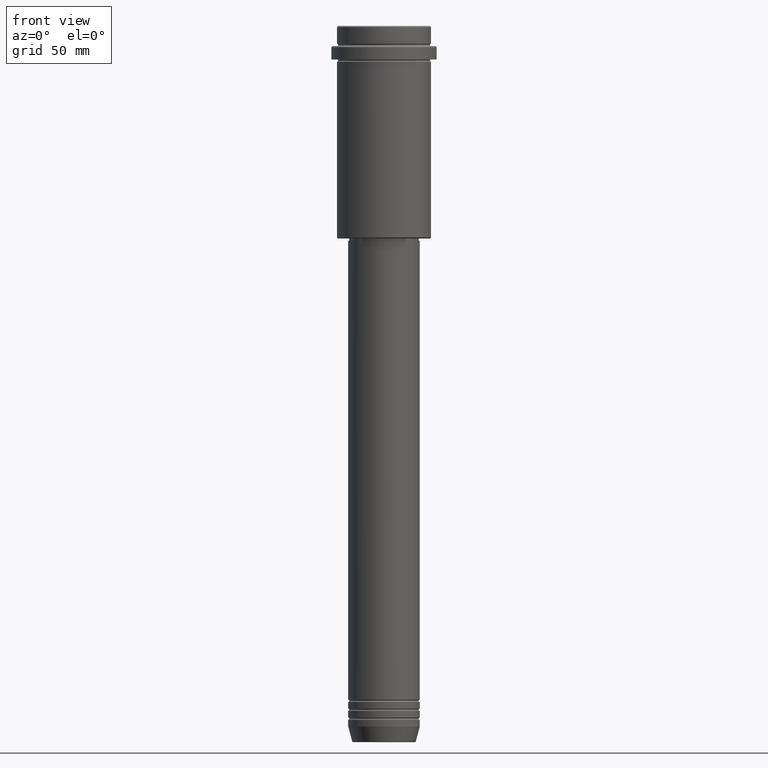
[diagram: clean part render]
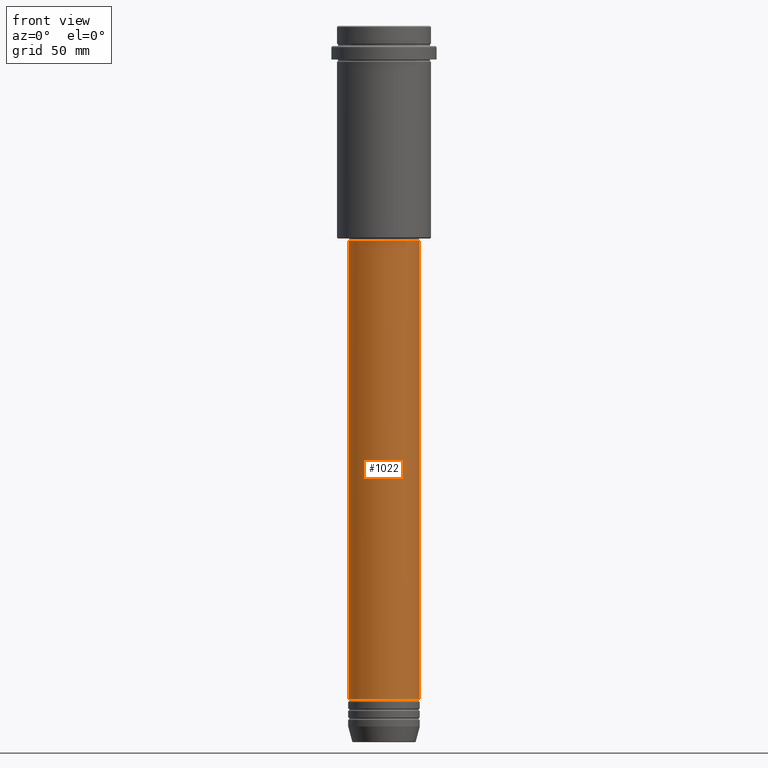
[diagram: same view with one face highlighted and labeled with its STEP entity id]
A machine part, front view. The second image highlights one B-rep face of the part: STEP entity #1022.
In plain terms, the highlighted cylindrical surface (edge-blend (fillet) strip) has radius 16 mm, axis along (-0, -0, 1).
Its self-contained STEP definition (entity closure, byte-faithful):
#16 = FACE_OUTER_BOUND ( 'NONE', #561, .T. ) ;
#30 = CARTESIAN_POINT ( 'NONE',  ( -16.00000000000000000, 1.959434878635765131E-15, -300.9999999999998863 ) ) ;
#51 = CARTESIAN_POINT ( 'NONE',  ( 16.00000000000000000, 0.000000000000000000, -300.9999999999998863 ) ) ;
#107 = VERTEX_POINT ( 'NONE', #30 ) ;
#112 = DIRECTION ( 'NONE',  ( 1.000000000000000000, 0.000000000000000000, 0.000000000000000000 ) ) ;
#143 = CARTESIAN_POINT ( 'NONE',  ( 16.00000000000000000, 0.000000000000000000, 0.000000000000000000 ) ) ;
#152 = DIRECTION ( 'NONE',  ( 1.000000000000000000, 0.000000000000000000, 0.000000000000000000 ) ) ;
#156 = AXIS2_PLACEMENT_3D ( 'NONE', #1094, #799, #112 ) ;
#216 = CIRCLE ( 'NONE', #156, 16.00000000000000355 ) ;
#261 = ORIENTED_EDGE ( 'NONE', *, *, #295, .F. ) ;
#291 = CARTESIAN_POINT ( 'NONE',  ( 16.00000000000000355, 0.000000000000000000, -95.99999999999991473 ) ) ;
#295 = EDGE_CURVE ( 'NONE', #107, #713, #920, .T. ) ;
#307 = AXIS2_PLACEMENT_3D ( 'NONE', #1140, #1129, #152 ) ;
#374 = VECTOR ( 'NONE', #1018, 1000.000000000000000 ) ;
#381 = CARTESIAN_POINT ( 'NONE',  ( -16.00000000000000355, 1.959434878635765526E-15, -95.99999999999991473 ) ) ;
#458 = ORIENTED_EDGE ( 'NONE', *, *, #1178, .T. ) ;
#474 = VECTOR ( 'NONE', #1023, 1000.000000000000000 ) ;
#511 = EDGE_CURVE ( 'NONE', #713, #790, #216, .T. ) ;
#551 = ORIENTED_EDGE ( 'NONE', *, *, #511, .F. ) ;
#561 = EDGE_LOOP ( 'NONE', ( #261, #458, #952, #551 ) ) ;
#713 = VERTEX_POINT ( 'NONE', #381 ) ;
#790 = VERTEX_POINT ( 'NONE', #291 ) ;
#799 = DIRECTION ( 'NONE',  ( -0.000000000000000000, -0.000000000000000000, 1.000000000000000000 ) ) ;
#861 = CYLINDRICAL_SURFACE ( 'NONE', #1284, 16.00000000000000000 ) ;
#871 = DIRECTION ( 'NONE',  ( 1.000000000000000000, 0.000000000000000000, 0.000000000000000000 ) ) ;
#920 = LINE ( 'NONE', #1351, #374 ) ;
#952 = ORIENTED_EDGE ( 'NONE', *, *, #1087, .T. ) ;
#1018 = DIRECTION ( 'NONE',  ( -0.000000000000000000, -0.000000000000000000, 1.000000000000000000 ) ) ;
#1022 = ADVANCED_FACE ( 'NONE', ( #16 ), #861, .T. ) ;
#1023 = DIRECTION ( 'NONE',  ( -0.000000000000000000, -0.000000000000000000, 1.000000000000000000 ) ) ;
#1061 = VERTEX_POINT ( 'NONE', #51 ) ;
#1087 = EDGE_CURVE ( 'NONE', #1061, #790, #1121, .T. ) ;
#1094 = CARTESIAN_POINT ( 'NONE',  ( 0.000000000000000000, 0.000000000000000000, -95.99999999999991473 ) ) ;
#1114 = CIRCLE ( 'NONE', #307, 16.00000000000000000 ) ;
#1121 = LINE ( 'NONE', #143, #474 ) ;
#1129 = DIRECTION ( 'NONE',  ( -0.000000000000000000, -0.000000000000000000, 1.000000000000000000 ) ) ;
#1140 = CARTESIAN_POINT ( 'NONE',  ( 0.000000000000000000, 0.000000000000000000, -300.9999999999998863 ) ) ;
#1178 = EDGE_CURVE ( 'NONE', #107, #1061, #1114, .T. ) ;
#1284 = AXIS2_PLACEMENT_3D ( 'NONE', #1301, #1416, #871 ) ;
#1301 = CARTESIAN_POINT ( 'NONE',  ( 0.000000000000000000, 0.000000000000000000, 0.000000000000000000 ) ) ;
#1351 = CARTESIAN_POINT ( 'NONE',  ( -16.00000000000000000, 1.959434878635765131E-15, 0.000000000000000000 ) ) ;
#1416 = DIRECTION ( 'NONE',  ( -0.000000000000000000, -0.000000000000000000, 1.000000000000000000 ) ) ;